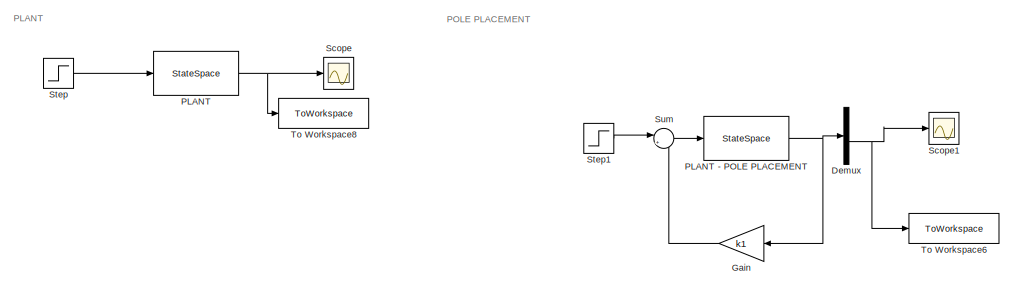
[diagram: root canvas - part 1/5, top left region]
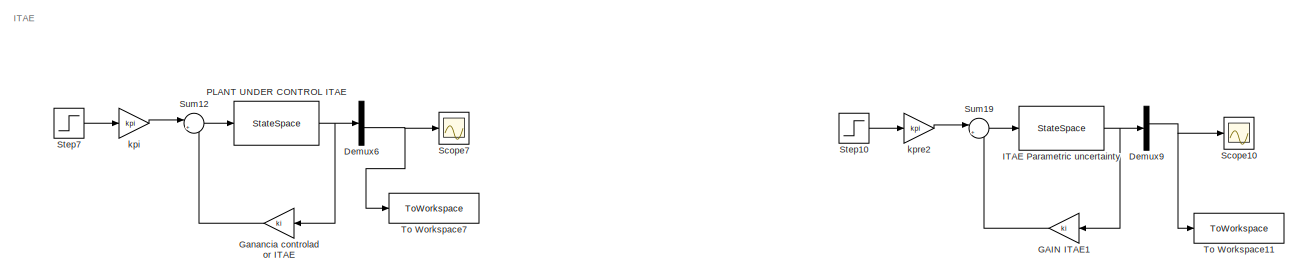
[diagram: root canvas - part 2/5, top right region]
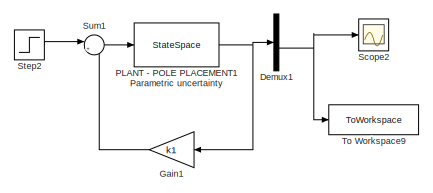
[diagram: root canvas - part 3/5, top center region]
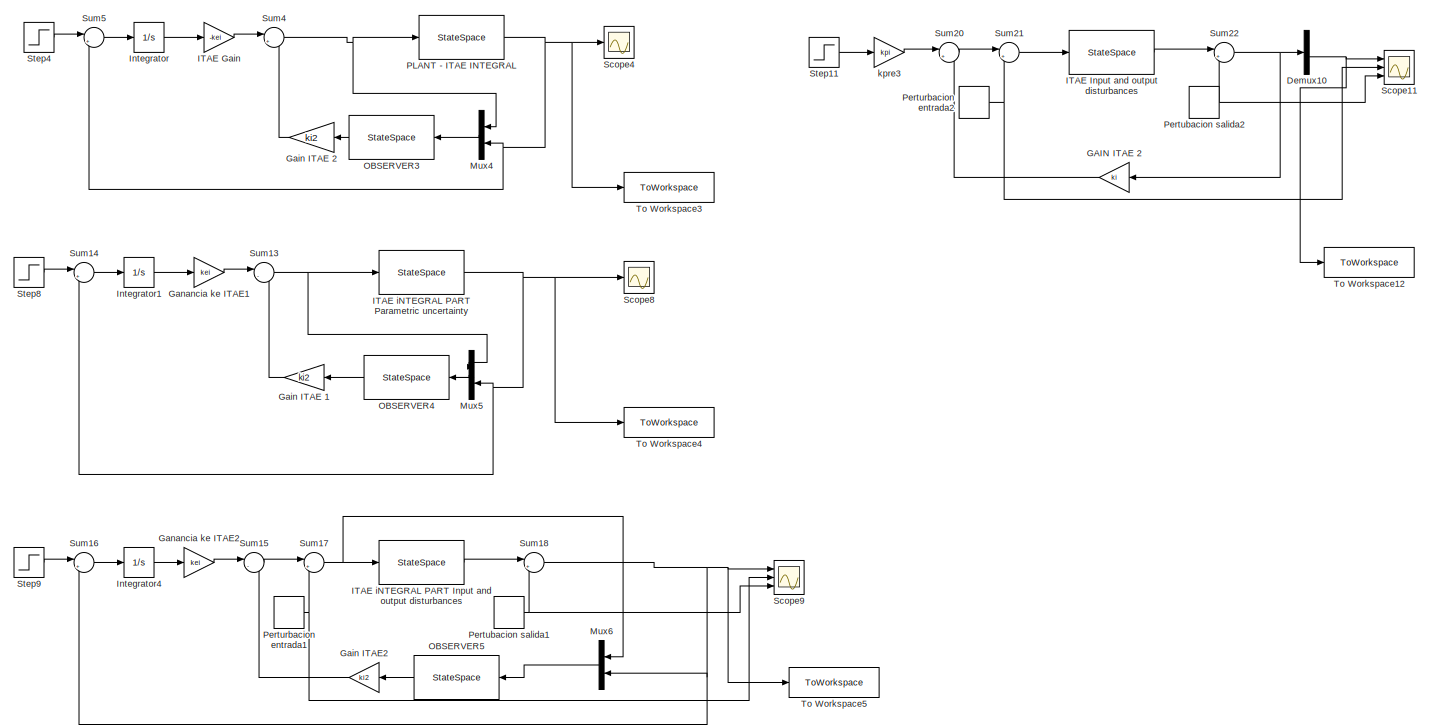
[diagram: root canvas - part 4/5, middle right region]
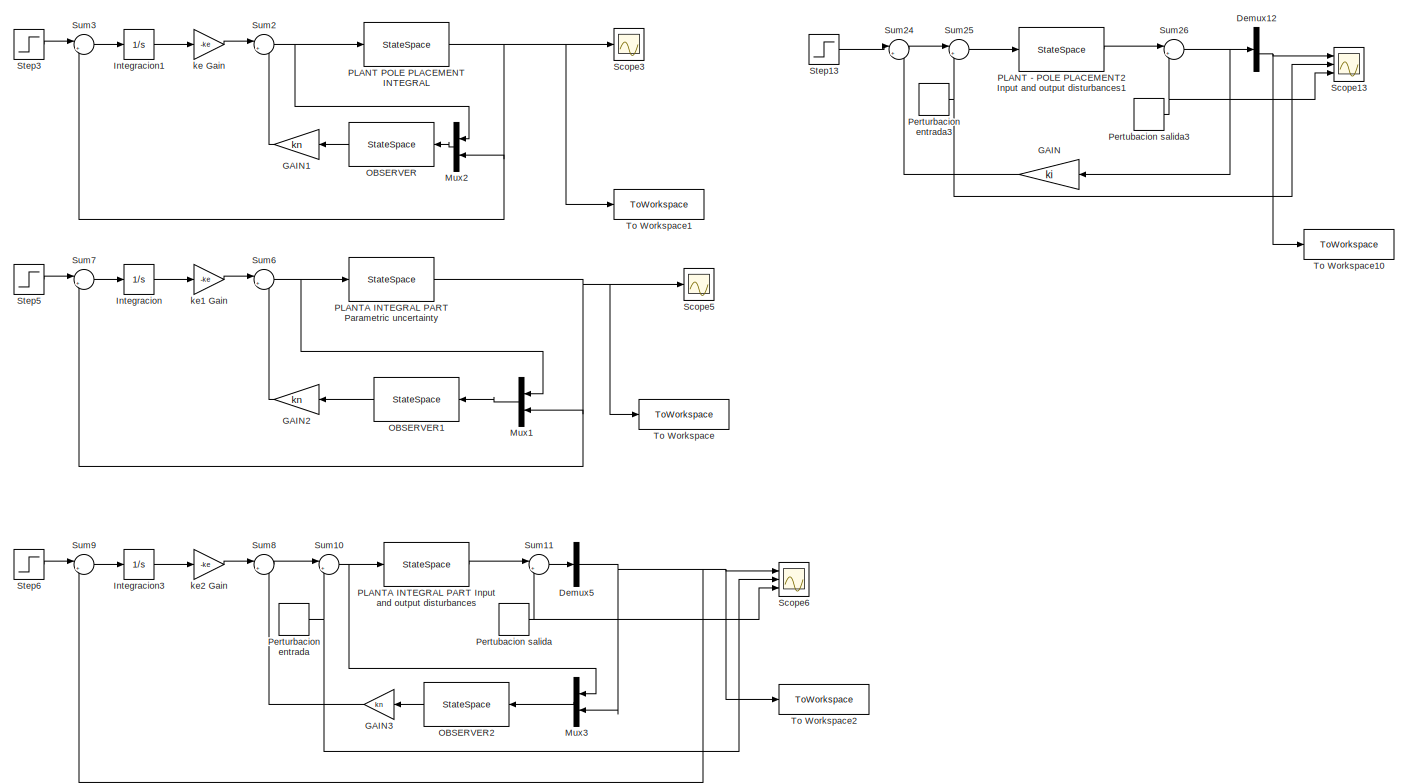
[diagram: root canvas - part 5/5, central region]
MODEL slx_41e71f8e8635
KIND model
CONFIG AbsTol = auto
CONFIG EnableMultiTasking = off
CONFIG FixedStep = auto
CONFIG MaxStep = auto
CONFIG MinStep = auto
CONFIG RelTol = 1e-3
CONFIG SampleTimeConstraint = Unconstrained
CONFIG SolverName = VariableStepAuto
CONFIG StartTime = 0.0
CONFIG StopTime = 100
BLOCK [StateSpace]  PLANT UNDER CONTROL ITAE
  A = A
  B = B
  C = eye(4)
  D = [0;0;0;0]
  InitialCondition = 0
  Ports = [1, 1]
BLOCK [Demux] Demux
  Ports = [1, 4]
BLOCK [Demux] Demux1
  Ports = [1, 4]
BLOCK [Demux] Demux10
  Ports = [1, 4]
BLOCK [Demux] Demux12
  Ports = [1, 4]
BLOCK [Demux] Demux5
  Outputs = 1
  Ports = [1, 1]
BLOCK [Demux] Demux6
  Ports = [1, 4]
BLOCK [Demux] Demux9
  Ports = [1, 4]
BLOCK [Gain] GAIN 
  Gain = ki
  Multiplication = Matrix(K*u)
  NameLocation = top
BLOCK [Gain] GAIN ITAE 2
  Gain = ki
  Multiplication = Matrix(K*u)
  NameLocation = top
BLOCK [Gain] GAIN ITAE1
  Gain = ki
  Multiplication = Matrix(K*u)
  NameLocation = top
BLOCK [Gain] GAIN1
  Gain = kn
  Multiplication = Matrix(K*u)
  NameLocation = top
BLOCK [Gain] GAIN2
  Gain = kn
  Multiplication = Matrix(K*u)
  NameLocation = top
BLOCK [Gain] GAIN3
  Gain = kn
  Multiplication = Matrix(K*u)
  NameLocation = top
BLOCK [Gain] Gain
  Gain = k1
  Multiplication = Matrix(K*u)
  NameLocation = top
BLOCK [Gain] Gain ITAE 1
  Gain = ki2
  Multiplication = Matrix(K*u)
  NameLocation = top
BLOCK [Gain] Gain ITAE 2
  Gain = ki2
  Multiplication = Matrix(K*u)
  NameLocation = top
BLOCK [Gain] Gain ITAE2
  Gain = ki2
  Multiplication = Matrix(K*u)
  NameLocation = top
BLOCK [Gain] Gain1
  Gain = k1
  Multiplication = Matrix(K*u)
  NameLocation = top
BLOCK [Gain] Ganancia controlador ITAE
  Gain = ki
  Multiplication = Matrix(K*u)
  NameLocation = top
BLOCK [Gain] Ganancia ke ITAE1
  Gain = kei
BLOCK [Gain] Ganancia ke ITAE2
  Gain = kei
BLOCK [Gain] ITAE Gain
  Gain = -kei
BLOCK [StateSpace] ITAE Input and output disturbances
  A = A
  B = B
  C = eye(4)
  D = [0;0;0;0]
  InitialCondition = 0
  Ports = [1, 1]
BLOCK [StateSpace] ITAE Parametric uncertainty
  A = A1
  B = B
  C = eye(4)
  D = [0;0;0;0]
  InitialCondition = 0
  Ports = [1, 1]
BLOCK [StateSpace] ITAE iNTEGRAL PART Input and output disturbances
  A = A
  B = B
  C = C
  D = D
  InitialCondition = 0
  Ports = [1, 1]
BLOCK [StateSpace] ITAE iNTEGRAL PART Parametric uncertainty
  A = A1
  B = B
  C = C
  D = D
  InitialCondition = 0
  Ports = [1, 1]
BLOCK [Integrator] Integracion
  Ports = [1, 1]
BLOCK [Integrator] Integracion1
  Ports = [1, 1]
BLOCK [Integrator] Integracion3
  Ports = [1, 1]
BLOCK [Integrator] Integrator
  Ports = [1, 1]
BLOCK [Integrator] Integrator1
  Ports = [1, 1]
BLOCK [Integrator] Integrator4
  Ports = [1, 1]
BLOCK [Mux] Mux1
  DisplayOption = bar
  Inputs = 2
  Ports = [2, 1]
BLOCK [Mux] Mux2
  DisplayOption = bar
  Inputs = 2
  Ports = [2, 1]
BLOCK [Mux] Mux3
  DisplayOption = bar
  Inputs = 2
  Ports = [2, 1]
BLOCK [Mux] Mux4
  DisplayOption = bar
  Inputs = 2
  Ports = [2, 1]
BLOCK [Mux] Mux5
  DisplayOption = bar
  Inputs = 2
  Ports = [2, 1]
BLOCK [Mux] Mux6
  DisplayOption = bar
  Inputs = 2
  Ports = [2, 1]
BLOCK [StateSpace] OBSERVER
  A = Aobs
  B = Bobs
  C = Cobs
  D = Dobs
  InitialCondition = 0
  Ports = [1, 1]
BLOCK [StateSpace] OBSERVER1
  A = Aobs
  B = Bobs
  C = Cobs
  D = Dobs
  InitialCondition = 0
  Ports = [1, 1]
BLOCK [StateSpace] OBSERVER2
  A = Aobs
  B = Bobs
  C = Cobs
  D = Dobs
  InitialCondition = 0
  Ports = [1, 1]
BLOCK [StateSpace] OBSERVER3
  A = Aobs
  B = Bobs
  C = Cobs
  D = Dobs
  InitialCondition = 0
  Ports = [1, 1]
BLOCK [StateSpace] OBSERVER4
  A = Aobs
  B = Bobs
  C = Cobs
  D = Dobs
  InitialCondition = 0
  Ports = [1, 1]
BLOCK [StateSpace] OBSERVER5
  A = Aobs
  B = Bobs
  C = Cobs
  D = Dobs
  InitialCondition = 0
  Ports = [1, 1]
BLOCK [StateSpace] PLANT
  A = A
  B = B
  C = C
  D = D
  InitialCondition = 0
  Ports = [1, 1]
BLOCK [StateSpace] PLANT - ITAE INTEGRAL
  A = A
  B = B
  C = C
  D = D
  InitialCondition = 0
  Ports = [1, 1]
BLOCK [StateSpace] PLANT - POLE PLACEMENT
  A = A
  B = B
  C = eye(4)
  D = [0;0;0;0]
  InitialCondition = 0
  Ports = [1, 1]
BLOCK [StateSpace] PLANT - POLE PLACEMENT1 Parametric uncertainty
  A = A1
  B = B
  C = eye(4)
  D = [0;0;0;0]
  InitialCondition = 0
  Ports = [1, 1]
BLOCK [StateSpace] PLANT - POLE PLACEMENT2 Input and output disturbances1
  A = A
  B = B
  C = eye(4)
  D = [0;0;0;0]
  InitialCondition = 0
  Ports = [1, 1]
BLOCK [StateSpace] PLANT POLE PLACEMENT INTEGRAL
  A = A
  B = B
  C = C
  D = D
  InitialCondition = 0
  Ports = [1, 1]
BLOCK [StateSpace] PLANTA INTEGRAL PART Input and output disturbances
  A = A
  B = B
  C = C
  D = D
  InitialCondition = 0
  Ports = [1, 1]
BLOCK [StateSpace] PLANTA INTEGRAL PART Parametric uncertainty
  A = A1
  B = B
  C = C
  D = D
  InitialCondition = 0
  Ports = [1, 1]
BLOCK [DiscretePulseGenerator] Pertubacion salida
  Amplitude = 0.05
  Period = 20
  PhaseDelay = 0.8
  Ports = [0, 1]
  PulseType = Time based
  PulseWidth = 2
BLOCK [DiscretePulseGenerator] Pertubacion salida1
  Amplitude = PO
  Period = 20
  PhaseDelay = 0.4
  Ports = [0, 1]
  PulseType = Time based
  PulseWidth = 2
BLOCK [DiscretePulseGenerator] Pertubacion salida2
  Amplitude = PO
  Period = 20
  PhaseDelay = 0.8
  Ports = [0, 1]
  PulseType = Time based
  PulseWidth = 2
BLOCK [DiscretePulseGenerator] Pertubacion salida3
  Amplitude = PO
  Period = 20
  PhaseDelay = 0.8
  Ports = [0, 1]
  PulseType = Time based
  PulseWidth = 2
BLOCK [DiscretePulseGenerator] Perturbacion entrada
  Amplitude = PI
  Period = 20
  PhaseDelay = 0.3
  Ports = [0, 1]
  PulseType = Time based
  PulseWidth = 2
BLOCK [DiscretePulseGenerator] Perturbacion entrada1
  Amplitude = PI
  Period = 20
  PhaseDelay = 0.1
  Ports = [0, 1]
  PulseType = Time based
  PulseWidth = 2
BLOCK [DiscretePulseGenerator] Perturbacion entrada2
  Amplitude = PI
  Period = 20
  PhaseDelay = 0.4
  Ports = [0, 1]
  PulseType = Time based
  PulseWidth = 2
BLOCK [DiscretePulseGenerator] Perturbacion entrada3
  Amplitude = PI
  Period = 20
  PhaseDelay = 0.4
  Ports = [0, 1]
  PulseType = Time based
  PulseWidth = 2
BLOCK [Scope] Scope
  Floating = off
  NumInputPorts = 1
  Ports = [1]
  ScopeSpecificationString = Simulink.scopes.TimeScopeBlockCfg('CurrentConfiguration', extmgr.ConfigurationSet(extmgr.Configuration('Core','General UI',true),extmgr.Configuration('Core','Source UI',true),extmgr.Configuration('Sources','WiredSimulink',true,'DataLoggingVariableName','ScopeData1'),extmgr.Configuration('Visuals','Time Domain',true,'SerializedDisplays',{struct('MinYLimReal','-0.40399','MaxYLimReal','0.04489','YLab...<+1393ch>
BLOCK [Scope] Scope1
  Floating = off
  NumInputPorts = 1
  Ports = [1]
  ScopeSpecificationString = Simulink.scopes.TimeScopeBlockCfg('CurrentConfiguration', extmgr.ConfigurationSet(extmgr.Configuration('Core','General UI',true),extmgr.Configuration('Core','Source UI',true),extmgr.Configuration('Sources','WiredSimulink',true,'DataLoggingVariableName','ScopeData2'),extmgr.Configuration('Visuals','Time Domain',true,'SerializedDisplays',{struct('MinYLimReal','-0.00265','MaxYLimReal','0.00029','YLab...<+1395ch>
BLOCK [Scope] Scope10
  Floating = off
  NumInputPorts = 1
  Ports = [1]
  ScopeSpecificationString = Simulink.scopes.TimeScopeBlockCfg('CurrentConfiguration', extmgr.ConfigurationSet(extmgr.Configuration('Core','General UI',true),extmgr.Configuration('Core','Source UI',true),extmgr.Configuration('Sources','WiredSimulink',true,'DataLoggingVariableName','ScopeData3'),extmgr.Configuration('Visuals','Time Domain',true,'SerializedDisplays',{struct('MinYLimReal','-0.03683','MaxYLimReal','0.00409','YLab...<+1396ch>
BLOCK [Scope] Scope11
  Floating = off
  NumInputPorts = 3
  Ports = [3]
  ScopeSpecificationString = Simulink.scopes.TimeScopeBlockCfg('CurrentConfiguration', extmgr.ConfigurationSet(extmgr.Configuration('Core','General UI',true),extmgr.Configuration('Core','Source UI',true),extmgr.Configuration('Sources','WiredSimulink',true,'DataLoggingVariableName','ScopeData4'),extmgr.Configuration('Visuals','Time Domain',true,'SerializedDisplays',{struct('MinYLimReal','-0.1875','MaxYLimReal','1.6875','YLabel...<+1437ch>
BLOCK [Scope] Scope13
  Floating = off
  NumInputPorts = 3
  Ports = [3]
  ScopeSpecificationString = Simulink.scopes.TimeScopeBlockCfg('CurrentConfiguration', extmgr.ConfigurationSet(extmgr.Configuration('Core','General UI',true),extmgr.Configuration('Core','Source UI',true),extmgr.Configuration('Sources','WiredSimulink',true,'DataLoggingVariableName','ScopeData3'),extmgr.Configuration('Visuals','Time Domain',true,'SerializedDisplays',{struct('MinYLimReal','-0.4638','MaxYLimReal','0.05153','YLabe...<+1439ch>
BLOCK [Scope] Scope2
  Floating = off
  NumInputPorts = 1
  Ports = [1]
  ScopeSpecificationString = Simulink.scopes.TimeScopeBlockCfg('CurrentConfiguration', extmgr.ConfigurationSet(extmgr.Configuration('Core','General UI',true),extmgr.Configuration('Core','Source UI',true),extmgr.Configuration('Sources','WiredSimulink',true,'DataLoggingVariableName','ScopeData1'),extmgr.Configuration('Visuals','Time Domain',true,'SerializedDisplays',{struct('MinYLimReal','-0.00265','MaxYLimReal','0.00029','YLab...<+1395ch>
BLOCK [Scope] Scope3
  Floating = off
  NumInputPorts = 1
  Ports = [1]
  ScopeSpecificationString = Simulink.scopes.TimeScopeBlockCfg('CurrentConfiguration', extmgr.ConfigurationSet(extmgr.Configuration('Core','General UI',true),extmgr.Configuration('Core','Source UI',true),extmgr.Configuration('Sources','WiredSimulink',true,'DataLoggingVariableName','ScopeData6'),extmgr.Configuration('Visuals','Time Domain',true,'SerializedDisplays',{struct('MinYLimReal','-0.13234','MaxYLimReal','1.1911','YLabe...<+1414ch>
BLOCK [Scope] Scope4
  Floating = off
  NumInputPorts = 1
  Ports = [1]
  ScopeSpecificationString = Simulink.scopes.TimeScopeBlockCfg('CurrentConfiguration', extmgr.ConfigurationSet(extmgr.Configuration('Core','General UI',true),extmgr.Configuration('Core','Source UI',true),extmgr.Configuration('Sources','WiredSimulink',true,'DataLoggingVariableName','ScopeData7'),extmgr.Configuration('Visuals','Time Domain',true,'SerializedDisplays',{struct('MinYLimReal','-0.12767','MaxYLimReal','1.14901','YLab...<+1409ch>
BLOCK [Scope] Scope5
  Floating = off
  NumInputPorts = 1
  Ports = [1]
  ScopeSpecificationString = Simulink.scopes.TimeScopeBlockCfg('CurrentConfiguration', extmgr.ConfigurationSet(extmgr.Configuration('Core','General UI',true),extmgr.Configuration('Core','Source UI',true),extmgr.Configuration('Sources','WiredSimulink',true,'DataLoggingVariableName','ScopeData8'),extmgr.Configuration('Visuals','Time Domain',true,'SerializedDisplays',{struct('MinYLimReal','-0.16622','MaxYLimReal','1.49601','YLab...<+1739ch>
BLOCK [Scope] Scope6
  Floating = off
  NumInputPorts = 3
  Ports = [3]
  ScopeSpecificationString = Simulink.scopes.TimeScopeBlockCfg('CurrentConfiguration', extmgr.ConfigurationSet(extmgr.Configuration('Core','General UI',true),extmgr.Configuration('Core','Source UI',true),extmgr.Configuration('Sources','WiredSimulink',true,'DataLoggingVariableName','ScopeData9'),extmgr.Configuration('Visuals','Time Domain',true,'SerializedDisplays',{struct('MinYLimReal','0.10484','MaxYLimReal','2.02039','YLabe...<+1455ch>
BLOCK [Scope] Scope7
  Floating = off
  NumInputPorts = 1
  Ports = [1]
  ScopeSpecificationString = Simulink.scopes.TimeScopeBlockCfg('CurrentConfiguration', extmgr.ConfigurationSet(extmgr.Configuration('Core','General UI',true),extmgr.Configuration('Core','Source UI',true),extmgr.Configuration('Sources','WiredSimulink',true,'DataLoggingVariableName','ScopeData10'),extmgr.Configuration('Visuals','Time Domain',true,'SerializedDisplays',{struct('MinYLimReal','-0.12739','MaxYLimReal','1.14655','YLa...<+1398ch>
BLOCK [Scope] Scope8
  Floating = off
  NumInputPorts = 1
  Ports = [1]
  ScopeSpecificationString = Simulink.scopes.TimeScopeBlockCfg('CurrentConfiguration', extmgr.ConfigurationSet(extmgr.Configuration('Core','General UI',true),extmgr.Configuration('Core','Source UI',true),extmgr.Configuration('Sources','WiredSimulink',true,'DataLoggingVariableName','ScopeData11'),extmgr.Configuration('Visuals','Time Domain',true,'SerializedDisplays',{struct('MinYLimReal','-30.73894','MaxYLimReal','8.344','YLab...<+1430ch>
BLOCK [Scope] Scope9
  Floating = off
  NumInputPorts = 3
  Ports = [3]
  ScopeSpecificationString = Simulink.scopes.TimeScopeBlockCfg('CurrentConfiguration', extmgr.ConfigurationSet(extmgr.Configuration('Core','General UI',true),extmgr.Configuration('Core','Source UI',true),extmgr.Configuration('Sources','WiredSimulink',true),extmgr.Configuration('Visuals','Time Domain',true,'SerializedDisplays',{struct('MinYLimReal','-0.3125','MaxYLimReal','2.8125','YLabelReal','','MinYLimMag','0.00000','MaxYLi...<+1438ch>
BLOCK [Step] Step
  SampleTime = 0
BLOCK [Step] Step1
  SampleTime = 0
  Time = 0
BLOCK [Step] Step10
  SampleTime = 0
  Time = 0
BLOCK [Step] Step11
  SampleTime = 0
  Time = 0
BLOCK [Step] Step13
  SampleTime = 0
BLOCK [Step] Step2
  SampleTime = 0
BLOCK [Step] Step3
  SampleTime = 0
  Time = 0
BLOCK [Step] Step4
  SampleTime = 0
  Time = 0
BLOCK [Step] Step5
  SampleTime = 0
  Time = 0
BLOCK [Step] Step6
  SampleTime = 0
  Time = 0
BLOCK [Step] Step7
  SampleTime = 0
  Time = 0
BLOCK [Step] Step8
  SampleTime = 0
  Time = 0
BLOCK [Step] Step9
  SampleTime = 0
  Time = 0
BLOCK [Sum] Sum
  Inputs = |+-
  Ports = [2, 1]
BLOCK [Sum] Sum1
  Inputs = |+-
  Ports = [2, 1]
BLOCK [Sum] Sum10
  Inputs = |++
  Ports = [2, 1]
BLOCK [Sum] Sum11
  Inputs = |++
  Ports = [2, 1]
BLOCK [Sum] Sum12
  Inputs = |+-
  Ports = [2, 1]
BLOCK [Sum] Sum13
  Inputs = |--
  Ports = [2, 1]
BLOCK [Sum] Sum14
  Inputs = |+-
  Ports = [2, 1]
BLOCK [Sum] Sum15
  Inputs = |--
  Ports = [2, 1]
BLOCK [Sum] Sum16
  Inputs = |+-
  Ports = [2, 1]
BLOCK [Sum] Sum17
  Inputs = |++
  Ports = [2, 1]
BLOCK [Sum] Sum18
  Inputs = |++
  Ports = [2, 1]
BLOCK [Sum] Sum19
  Inputs = |+-
  Ports = [2, 1]
BLOCK [Sum] Sum2
  Inputs = |+-
  Ports = [2, 1]
BLOCK [Sum] Sum20
  Inputs = |+-
  Ports = [2, 1]
BLOCK [Sum] Sum21
  Inputs = |++
  Ports = [2, 1]
BLOCK [Sum] Sum22
  Inputs = |++
  Ports = [2, 1]
BLOCK [Sum] Sum24
  Inputs = |+-
  Ports = [2, 1]
BLOCK [Sum] Sum25
  Inputs = |++
  Ports = [2, 1]
BLOCK [Sum] Sum26
  Inputs = |++
  Ports = [2, 1]
BLOCK [Sum] Sum3
  Inputs = |+-
  Ports = [2, 1]
BLOCK [Sum] Sum4
  Inputs = |+-
  Ports = [2, 1]
BLOCK [Sum] Sum5
  Inputs = |+-
  Ports = [2, 1]
BLOCK [Sum] Sum6
  Inputs = |+-
  Ports = [2, 1]
BLOCK [Sum] Sum7
  Inputs = |+-
  Ports = [2, 1]
BLOCK [Sum] Sum8
  Inputs = |+-
  Ports = [2, 1]
BLOCK [Sum] Sum9
  Inputs = |+-
  Ports = [2, 1]
BLOCK [ToWorkspace] To Workspace
  FixptAsFi = on
  MaxDataPoints = inf
  Ports = [1]
  SampleTime = -1
  SaveFormat = Timeseries
  VariableName = plant_uci_pu
BLOCK [ToWorkspace] To Workspace1
  FixptAsFi = on
  MaxDataPoints = inf
  Ports = [1]
  SampleTime = -1
  SaveFormat = Timeseries
  VariableName = plant_uci
BLOCK [ToWorkspace] To Workspace10
  FixptAsFi = on
  MaxDataPoints = inf
  Ports = [1]
  SampleTime = -1
  SaveFormat = Timeseries
  VariableName = plant_uc_iod
BLOCK [ToWorkspace] To Workspace11
  FixptAsFi = on
  MaxDataPoints = inf
  Ports = [1]
  SampleTime = -1
  SaveFormat = Timeseries
  VariableName = plant_ucitae_pu
BLOCK [ToWorkspace] To Workspace12
  FixptAsFi = on
  MaxDataPoints = inf
  Ports = [1]
  SampleTime = -1
  SaveFormat = Timeseries
  VariableName = plant_ucitae_iod
BLOCK [ToWorkspace] To Workspace2
  FixptAsFi = on
  MaxDataPoints = inf
  Ports = [1]
  SampleTime = -1
  SaveFormat = Timeseries
  VariableName = plant_uci_iod
BLOCK [ToWorkspace] To Workspace3
  FixptAsFi = on
  MaxDataPoints = inf
  Ports = [1]
  SampleTime = -1
  SaveFormat = Timeseries
  VariableName = plant_ucitaei
BLOCK [ToWorkspace] To Workspace4
  FixptAsFi = on
  MaxDataPoints = inf
  Ports = [1]
  SampleTime = -1
  SaveFormat = Timeseries
  VariableName = plant_ucitaei_pu
BLOCK [ToWorkspace] To Workspace5
  FixptAsFi = on
  MaxDataPoints = inf
  Ports = [1]
  SampleTime = -1
  SaveFormat = Timeseries
  VariableName = plant_ucitaei_iod
BLOCK [ToWorkspace] To Workspace6
  FixptAsFi = on
  MaxDataPoints = inf
  Ports = [1]
  SampleTime = -1
  SaveFormat = Timeseries
  VariableName = plant_uc
BLOCK [ToWorkspace] To Workspace7
  FixptAsFi = on
  MaxDataPoints = inf
  Ports = [1]
  SampleTime = -1
  SaveFormat = Timeseries
  VariableName = plant_ucitae
BLOCK [ToWorkspace] To Workspace8
  FixptAsFi = on
  MaxDataPoints = inf
  Ports = [1]
  SampleTime = -1
  SaveFormat = Timeseries
  VariableName = plant
BLOCK [ToWorkspace] To Workspace9
  FixptAsFi = on
  MaxDataPoints = inf
  Ports = [1]
  SampleTime = -1
  SaveFormat = Timeseries
  VariableName = plant_uc_pu
BLOCK [Gain] ke Gain
  Gain = -ke
BLOCK [Gain] ke1 Gain
  Gain = -ke
BLOCK [Gain] ke2 Gain
  Gain = -ke
BLOCK [Gain] kpi
  Gain = kpi
BLOCK [Gain] kpre2
  Gain = kpi
BLOCK [Gain] kpre3
  Gain = kpi
ANNOTATION (root): ITAE
ANNOTATION (root): PLANT
ANNOTATION (root): POLE PLACEMENT
NET  PLANT UNDER CONTROL ITAE:1 -> Demux6:1, Ganancia controlador ITAE:1
NET Demux10:3 -> Scope11:1, To Workspace12:1
NET Demux12:3 -> Scope13:1, To Workspace10:1
NET Demux1:3 -> Scope2:1, To Workspace9:1
NET Demux5:1 -> Mux3:2, Scope6:1, Sum9:2, To Workspace2:1
NET Demux6:3 -> Scope7:1, To Workspace7:1
NET Demux9:2 -> Scope10:1, To Workspace11:1
NET Demux:3 -> Scope1:1, To Workspace6:1
LINE GAIN :1 -> Sum24:2
LINE GAIN ITAE 2:1 -> Sum20:2
LINE GAIN ITAE1:1 -> Sum19:2
LINE GAIN1:1 -> Sum2:2
LINE GAIN2:1 -> Sum6:2
LINE GAIN3:1 -> Sum8:2
LINE Gain ITAE 1:1 -> Sum13:2
LINE Gain ITAE 2:1 -> Sum4:2
LINE Gain ITAE2:1 -> Sum15:2
LINE Gain1:1 -> Sum1:2
LINE Gain:1 -> Sum:2
LINE Ganancia controlador ITAE:1 -> Sum12:2
LINE Ganancia ke ITAE1:1 -> Sum13:1
LINE Ganancia ke ITAE2:1 -> Sum15:1
LINE ITAE Gain:1 -> Sum4:1
LINE ITAE Input and output disturbances:1 -> Sum22:1
NET ITAE Parametric uncertainty:1 -> Demux9:1, GAIN ITAE1:1
LINE ITAE iNTEGRAL PART Input and output disturbances:1 -> Sum18:1
NET ITAE iNTEGRAL PART Parametric uncertainty:1 -> Mux5:2, Scope8:1, Sum14:2, To Workspace4:1
LINE Integracion1:1 -> ke Gain:1
LINE Integracion3:1 -> ke2 Gain:1
LINE Integracion:1 -> ke1 Gain:1
LINE Integrator1:1 -> Ganancia ke ITAE1:1
LINE Integrator4:1 -> Ganancia ke ITAE2:1
LINE Integrator:1 -> ITAE Gain:1
LINE Mux1:1 -> OBSERVER1:1
LINE Mux2:1 -> OBSERVER:1
LINE Mux3:1 -> OBSERVER2:1
LINE Mux4:1 -> OBSERVER3:1
LINE Mux5:1 -> OBSERVER4:1
LINE Mux6:1 -> OBSERVER5:1
LINE OBSERVER1:1 -> GAIN2:1
LINE OBSERVER2:1 -> GAIN3:1
LINE OBSERVER3:1 -> Gain ITAE 2:1
LINE OBSERVER4:1 -> Gain ITAE 1:1
LINE OBSERVER5:1 -> Gain ITAE2:1
LINE OBSERVER:1 -> GAIN1:1
NET PLANT - ITAE INTEGRAL:1 -> Mux4:2, Scope4:1, Sum5:2, To Workspace3:1
NET PLANT - POLE PLACEMENT1 Parametric uncertainty:1 -> Demux1:1, Gain1:1
LINE PLANT - POLE PLACEMENT2 Input and output disturbances1:1 -> Sum26:1
NET PLANT - POLE PLACEMENT:1 -> Demux:1, Gain:1
NET PLANT POLE PLACEMENT INTEGRAL:1 -> Mux2:2, Scope3:1, Sum3:2, To Workspace1:1
NET PLANT:1 -> Scope:1, To Workspace8:1
LINE PLANTA INTEGRAL PART Input and output disturbances:1 -> Sum11:1
NET PLANTA INTEGRAL PART Parametric uncertainty:1 -> Mux1:2, Scope5:1, Sum7:2, To Workspace:1
NET Pertubacion salida1:1 -> Scope9:3, Sum18:2
NET Pertubacion salida2:1 -> Scope11:3, Sum22:2
NET Pertubacion salida3:1 -> Scope13:3, Sum26:2
NET Pertubacion salida:1 -> Scope6:3, Sum11:2
NET Perturbacion entrada1:1 -> Scope9:2, Sum17:2
NET Perturbacion entrada2:1 -> Scope11:2, Sum21:2
NET Perturbacion entrada3:1 -> Scope13:2, Sum25:2
NET Perturbacion entrada:1 -> Scope6:2, Sum10:2
LINE Step10:1 -> kpre2:1
LINE Step11:1 -> kpre3:1
LINE Step13:1 -> Sum24:1
LINE Step1:1 -> Sum:1
LINE Step2:1 -> Sum1:1
LINE Step3:1 -> Sum3:1
LINE Step4:1 -> Sum5:1
LINE Step5:1 -> Sum7:1
LINE Step6:1 -> Sum9:1
LINE Step7:1 -> kpi:1
LINE Step8:1 -> Sum14:1
LINE Step9:1 -> Sum16:1
LINE Step:1 -> PLANT:1
NET Sum10:1 -> Mux3:1, PLANTA INTEGRAL PART Input and output disturbances:1
LINE Sum11:1 -> Demux5:1
LINE Sum12:1 ->  PLANT UNDER CONTROL ITAE:1
NET Sum13:1 -> ITAE iNTEGRAL PART Parametric uncertainty:1, Mux5:1
LINE Sum14:1 -> Integrator1:1
LINE Sum15:1 -> Sum17:1
LINE Sum16:1 -> Integrator4:1
NET Sum17:1 -> ITAE iNTEGRAL PART Input and output disturbances:1, Mux6:1
NET Sum18:1 -> Mux6:2, Scope9:1, Sum16:2, To Workspace5:1
LINE Sum19:1 -> ITAE Parametric uncertainty:1
LINE Sum1:1 -> PLANT - POLE PLACEMENT1 Parametric uncertainty:1
LINE Sum20:1 -> Sum21:1
LINE Sum21:1 -> ITAE Input and output disturbances:1
NET Sum22:1 -> Demux10:1, GAIN ITAE 2:1
LINE Sum24:1 -> Sum25:1
LINE Sum25:1 -> PLANT - POLE PLACEMENT2 Input and output disturbances1:1
NET Sum26:1 -> Demux12:1, GAIN :1
NET Sum2:1 -> Mux2:1, PLANT POLE PLACEMENT INTEGRAL:1
LINE Sum3:1 -> Integracion1:1
NET Sum4:1 -> Mux4:1, PLANT - ITAE INTEGRAL:1
LINE Sum5:1 -> Integrator:1
NET Sum6:1 -> Mux1:1, PLANTA INTEGRAL PART Parametric uncertainty:1
LINE Sum7:1 -> Integracion:1
LINE Sum8:1 -> Sum10:1
LINE Sum9:1 -> Integracion3:1
LINE Sum:1 -> PLANT - POLE PLACEMENT:1
LINE ke Gain:1 -> Sum2:1
LINE ke1 Gain:1 -> Sum6:1
LINE ke2 Gain:1 -> Sum8:1
LINE kpi:1 -> Sum12:1
LINE kpre2:1 -> Sum19:1
LINE kpre3:1 -> Sum20:1
note: NET lines group one-source signal fan-out (src -> all destinations, sorted); 1:1 wires keep LINE
